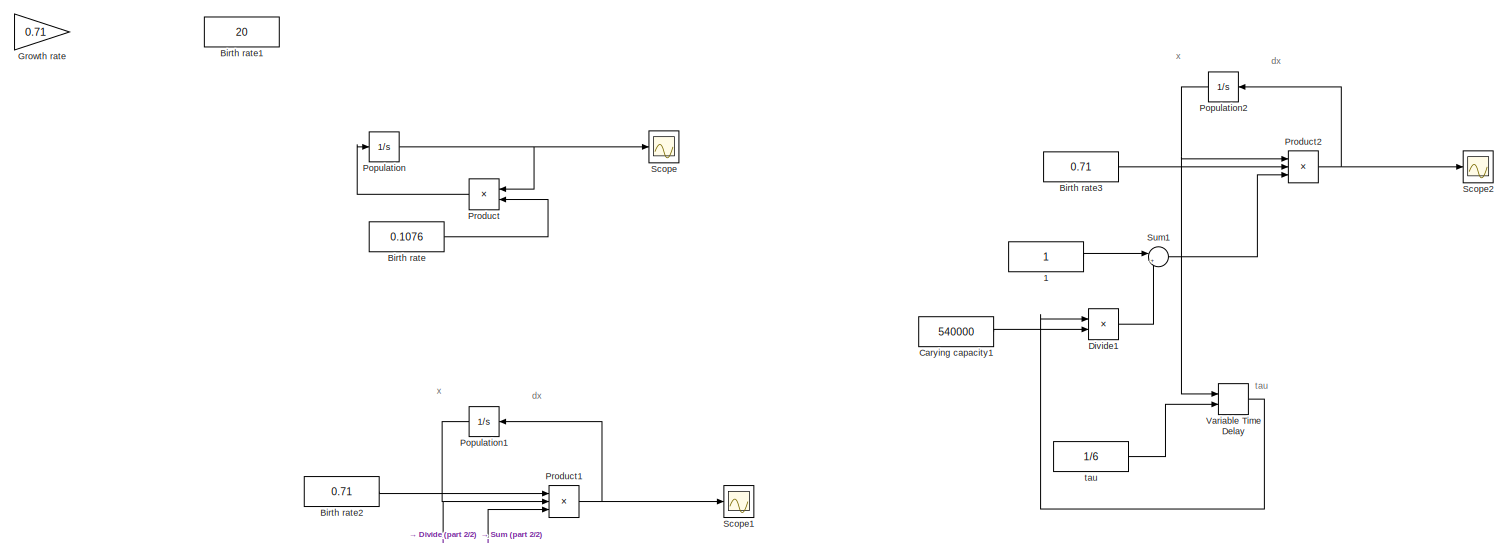
[diagram: root canvas - part 1/2, full width, top band]
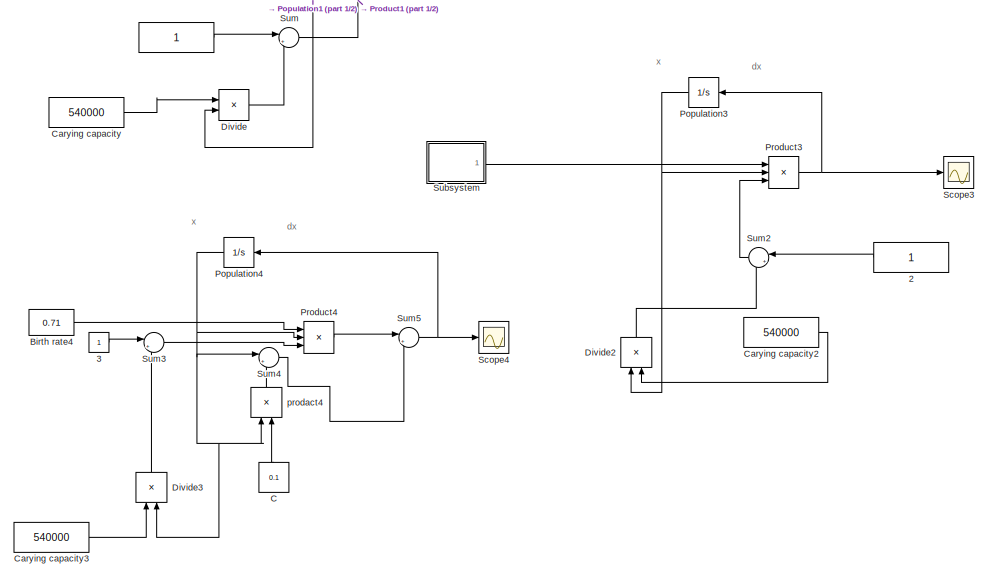
[diagram: root canvas - part 2/2, bottom center region]
MODEL slx_eebe1f70c743
KIND model
BLOCK [Constant]  
BLOCK [Constant]  1
BLOCK [Constant]  2
BLOCK [Constant]  3
BLOCK [Constant]  tau
  Value = 1/6
BLOCK [Constant] Birth rate
  Value = 0.1076
BLOCK [Constant] Birth rate1
  Value = 20
BLOCK [Constant] Birth rate2
  Value = 0.71
BLOCK [Constant] Birth rate3
  Value = 0.71
BLOCK [Constant] Birth rate4
  Value = 0.71
BLOCK [Constant] C
  Value = 0.1
BLOCK [Constant] Carying capacity
  Value = 540000
BLOCK [Constant] Carying capacity1
  Value = 540000
BLOCK [Constant] Carying capacity2
  Value = 540000
BLOCK [Constant] Carying capacity3
  Value = 540000
BLOCK [Product] Divide
  InputSameDT = off
  Inputs = /*
  OutDataTypeStr = Inherit: Inherit via internal rule
  Ports = [2, 1]
  RndMeth = Floor
  SaturateOnIntegerOverflow = off
BLOCK [Product] Divide1
  InputSameDT = off
  Inputs = */
  OutDataTypeStr = Inherit: Inherit via internal rule
  Ports = [2, 1]
  RndMeth = Floor
  SaturateOnIntegerOverflow = off
BLOCK [Product] Divide2
  InputSameDT = off
  Inputs = */
  OutDataTypeStr = Inherit: Inherit via internal rule
  Ports = [2, 1]
  RndMeth = Floor
  SaturateOnIntegerOverflow = off
BLOCK [Product] Divide3
  InputSameDT = off
  Inputs = /*
  OutDataTypeStr = Inherit: Inherit via internal rule
  Ports = [2, 1]
  RndMeth = Floor
  SaturateOnIntegerOverflow = off
BLOCK [Gain] Growth rate
  Gain = 0.71
  OutDataTypeStr = Inherit: Inherit via internal rule
  ParamDataTypeStr = Inherit: Inherit via internal rule
  SaturateOnIntegerOverflow = off
BLOCK [Integrator] Population
  InitialCondition = 14.4775
  Ports = [1, 1]
BLOCK [Integrator] Population1
  InitialCondition = 540000/4
  Ports = [1, 1]
BLOCK [Integrator] Population2
  InitialCondition = 540000/4
  Ports = [1, 1]
BLOCK [Integrator] Population3
  InitialCondition = 540000/4
  Ports = [1, 1]
BLOCK [Integrator] Population4
  InitialCondition = 540000/4
  Ports = [1, 1]
BLOCK [Product] Product
  InputSameDT = off
  OutDataTypeStr = Inherit: Inherit via internal rule
  Ports = [2, 1]
  RndMeth = Floor
  SaturateOnIntegerOverflow = off
BLOCK [Product] Product1
  InputSameDT = off
  Inputs = 3
  OutDataTypeStr = Inherit: Inherit via internal rule
  Ports = [3, 1]
  RndMeth = Floor
  SaturateOnIntegerOverflow = off
BLOCK [Product] Product2
  InputSameDT = off
  Inputs = 3
  OutDataTypeStr = Inherit: Inherit via internal rule
  Ports = [3, 1]
  RndMeth = Floor
  SaturateOnIntegerOverflow = off
BLOCK [Product] Product3
  InputSameDT = off
  Inputs = 3
  OutDataTypeStr = Inherit: Inherit via internal rule
  Ports = [3, 1]
  RndMeth = Floor
  SaturateOnIntegerOverflow = off
BLOCK [Product] Product4
  InputSameDT = off
  Inputs = 3
  OutDataTypeStr = Inherit: Inherit via internal rule
  Ports = [3, 1]
  RndMeth = Floor
  SaturateOnIntegerOverflow = off
BLOCK [Scope] Scope
  DataFormat = StructureWithTime
  Floating = off
  NumInputPorts = 1
  Ports = [1]
  SampleTime = 0
  ShowLegends = off
BLOCK [Scope] Scope1
  DataFormat = StructureWithTime
  Floating = off
  NumInputPorts = 1
  Ports = [1]
  SampleTime = 0
  SaveName = ScopeData1
  ShowLegends = off
  ZoomMode = xonly
BLOCK [Scope] Scope2
  DataFormat = StructureWithTime
  Floating = off
  NumInputPorts = 1
  Ports = [1]
  SampleTime = 0
  SaveName = ScopeData2
  ShowLegends = off
  ZoomMode = xonly
BLOCK [Scope] Scope3
  DataFormat = StructureWithTime
  Floating = off
  NumInputPorts = 1
  Ports = [1]
  SampleTime = 0
  SaveName = ScopeData3
  ShowLegends = off
  ZoomMode = xonly
BLOCK [Scope] Scope4
  DataFormat = StructureWithTime
  Floating = off
  NumInputPorts = 1
  Ports = [1]
  SampleTime = 0
  SaveName = ScopeData4
  ShowLegends = off
  ZoomMode = xonly
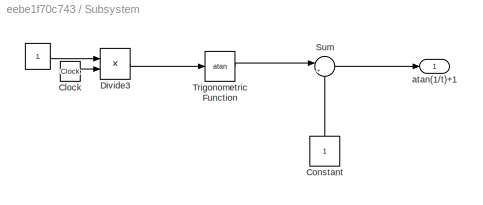
BLOCK [SubSystem] Subsystem
  FunctionWithSeparateData = off
  MaskHideContents = off
  MinAlgLoopOccurrences = off
  Opaque = off
  Ports = [0, 1]
  PropExecContextOutsideSubsystem = off
  RTWSystemCode = Auto
  RequestExecContextInheritance = off
BLOCK [Constant] Subsystem/ 
BLOCK [Clock] Subsystem/Clock
BLOCK [Constant] Subsystem/Constant
BLOCK [Product] Subsystem/Divide3
  InputSameDT = off
  Inputs = */
  OutDataTypeStr = Inherit: Inherit via internal rule
  Ports = [2, 1]
  RndMeth = Floor
  SaturateOnIntegerOverflow = off
BLOCK [Sum] Subsystem/Sum
  IconShape = round
  InputSameDT = off
  Inputs = |++
  OutDataTypeStr = Inherit: Inherit via internal rule
  Ports = [2, 1]
  SaturateOnIntegerOverflow = off
BLOCK [Trigonometry] Subsystem/Trigonometric Function
  Operator = atan
  Ports = [1, 1]
BLOCK [Outport] Subsystem/atan(1//t)+1 
  IconDisplay = Port number
BLOCK [Sum] Sum
  IconShape = round
  InputSameDT = off
  Inputs = |+-
  OutDataTypeStr = Inherit: Inherit via internal rule
  Ports = [2, 1]
  SaturateOnIntegerOverflow = off
BLOCK [Sum] Sum1
  IconShape = round
  InputSameDT = off
  Inputs = |+-
  OutDataTypeStr = Inherit: Inherit via internal rule
  Ports = [2, 1]
  SaturateOnIntegerOverflow = off
BLOCK [Sum] Sum2
  IconShape = round
  InputSameDT = off
  Inputs = |+-
  OutDataTypeStr = Inherit: Inherit via internal rule
  Ports = [2, 1]
  SaturateOnIntegerOverflow = off
BLOCK [Sum] Sum3
  IconShape = round
  InputSameDT = off
  Inputs = |+-
  OutDataTypeStr = Inherit: Inherit via internal rule
  Ports = [2, 1]
  SaturateOnIntegerOverflow = off
BLOCK [Sum] Sum4
  IconShape = round
  InputSameDT = off
  Inputs = |+-
  OutDataTypeStr = Inherit: Inherit via internal rule
  Ports = [2, 1]
  SaturateOnIntegerOverflow = off
BLOCK [Sum] Sum5
  IconShape = round
  InputSameDT = off
  Inputs = |+-
  OutDataTypeStr = Inherit: Inherit via internal rule
  Ports = [2, 1]
  SaturateOnIntegerOverflow = off
BLOCK [VariableTransportDelay] Variable Time Delay
  MaximumDelay = 10
  Ports = [2, 1]
BLOCK [Product] prodact4 
  InputSameDT = off
  Inputs = **
  OutDataTypeStr = Inherit: Inherit via internal rule
  Ports = [2, 1]
  RndMeth = Floor
  SaturateOnIntegerOverflow = off
ANNOTATION (root): dx
ANNOTATION (root): tau
ANNOTATION (root): x
LINE  1:1 -> Sum1:1
LINE  2:1 -> Sum2:1
LINE  3:1 -> Sum3:1
LINE  :1 -> Sum:1
LINE  tau:1 -> Variable Time Delay:2
LINE Birth rate2:1 -> Product1:1
LINE Birth rate3:1 -> Product2:2
LINE Birth rate4:1 -> Product4:1
LINE Birth rate:1 -> Product:2
LINE C:1 -> prodact4 :2
LINE Carying capacity1:1 -> Divide1:2
LINE Carying capacity2:1 -> Divide2:2
LINE Carying capacity3:1 -> Divide3:1
LINE Carying capacity:1 -> Divide:1
LINE Divide1:1 -> Sum1:2
LINE Divide2:1 -> Sum2:2
LINE Divide3:1 -> Sum3:2
LINE Divide:1 -> Sum:2
NET Population1:1 -> Divide:2, Product1:2
NET Population2:1 -> Product2:1, Variable Time Delay:1
NET Population3:1 -> Divide2:1, Product3:2
NET Population4:1 -> Divide3:2, Product4:2, Sum4:1, prodact4 :1
NET Population:1 -> Product:1, Scope:1
NET Product1:1 -> Population1:1, Scope1:1
NET Product2:1 -> Population2:1, Scope2:1
NET Product3:1 -> Population3:1, Scope3:1
LINE Product4:1 -> Sum5:1
LINE Product:1 -> Population:1
LINE Subsystem/ :1 -> Subsystem/Divide3:1
LINE Subsystem/Clock:1 -> Subsystem/Divide3:2
LINE Subsystem/Constant:1 -> Subsystem/Sum:2
LINE Subsystem/Divide3:1 -> Subsystem/Trigonometric Function:1
LINE Subsystem/Sum:1 -> Subsystem/atan(1//t)+1 :1
LINE Subsystem/Trigonometric Function:1 -> Subsystem/Sum:1
LINE Subsystem:1 -> Product3:1
LINE Sum1:1 -> Product2:3
LINE Sum2:1 -> Product3:3
LINE Sum3:1 -> Product4:3
LINE Sum4:1 -> Sum5:2
NET Sum5:1 -> Population4:1, Scope4:1
LINE Sum:1 -> Product1:3
LINE Variable Time Delay:1 -> Divide1:1
LINE prodact4 :1 -> Sum4:2
note: NET lines group one-source signal fan-out (src -> all destinations, sorted); 1:1 wires keep LINE
